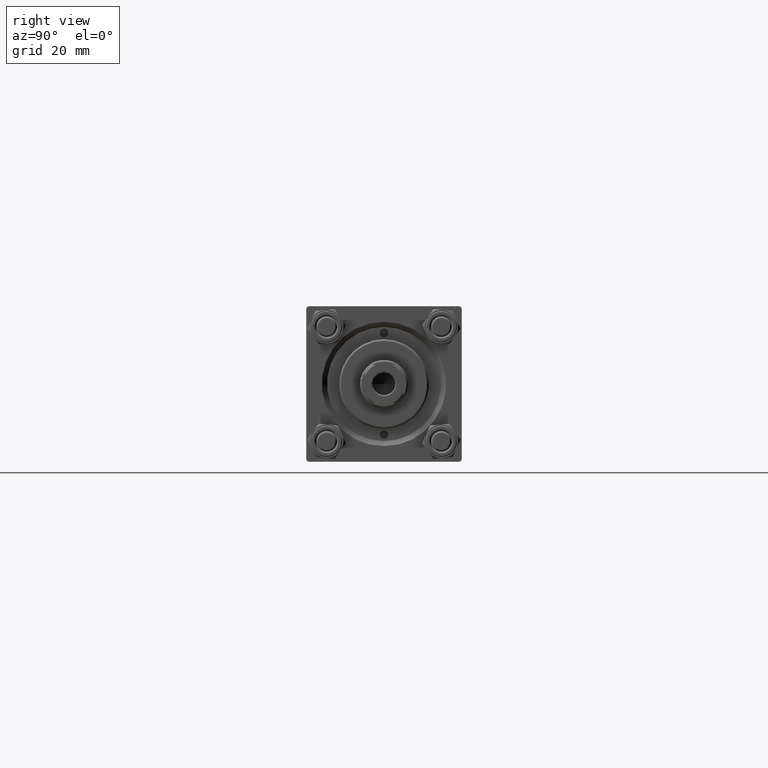
[diagram: clean part render]
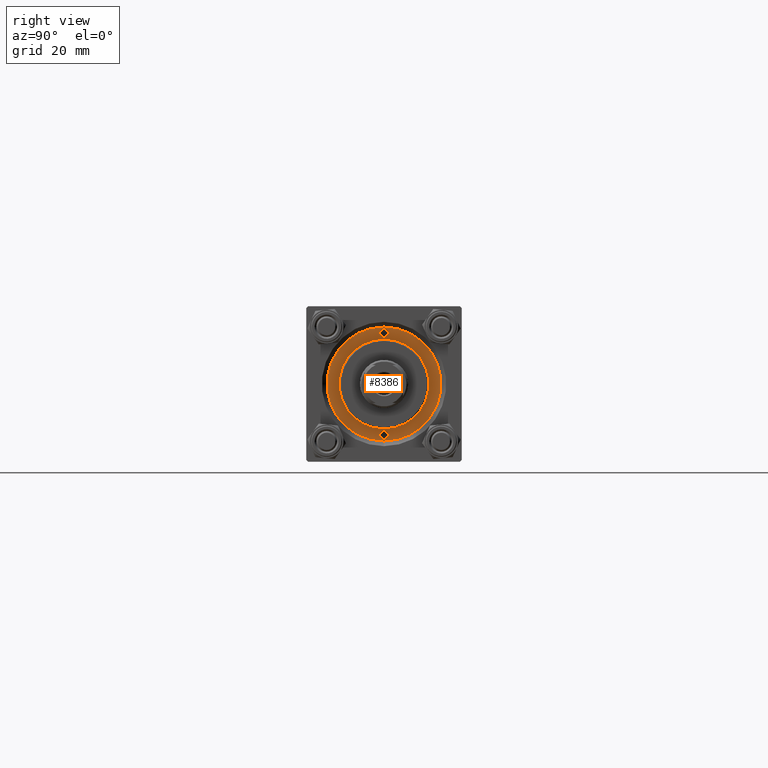
[diagram: same view with one face highlighted and labeled with its STEP entity id]
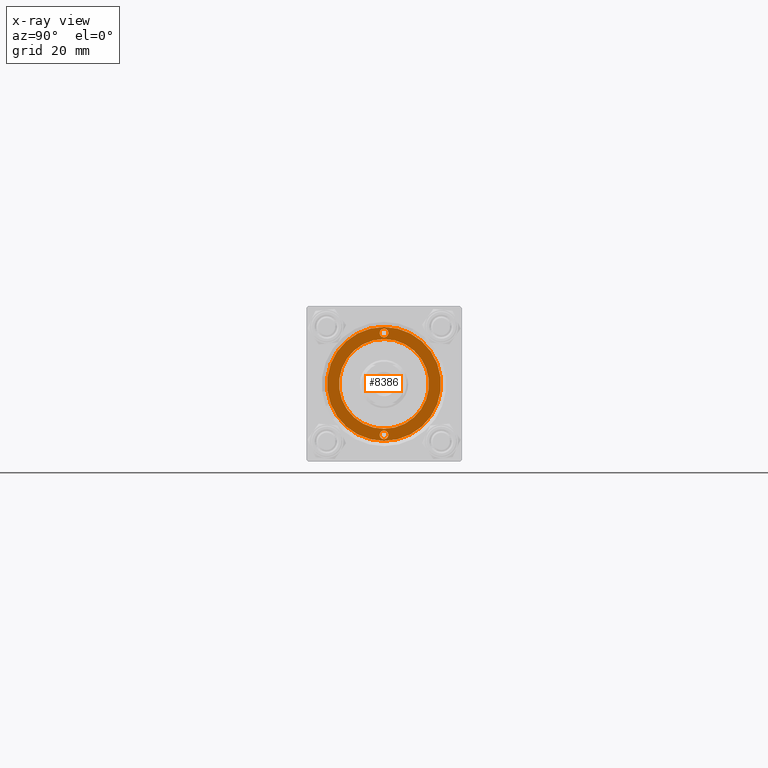
[diagram: x-ray of the same camera — body ghosted, the highlighted face saturated]
A machine part, right view. The second image highlights one B-rep face of the part: STEP entity #8386.
The next image is the same camera in x-ray: the body ghosted, the highlighted face saturated — about 0% of this face is hidden behind the body in this view.
In plain terms, the highlighted planar face has unit normal (1, 0, -0).
Its self-contained STEP definition (entity closure, byte-faithful):
#1057 = DIRECTION ( 'NONE',  ( 0.000000000000000000, 0.000000000000000000, 1.000000000000000000 ) ) ;
#2075 = CARTESIAN_POINT ( 'NONE',  ( 13.00000000000000178, 1.592040838891559293E-15, 28.69999999999999929 ) ) ;
#2120 = DIRECTION ( 'NONE',  ( 1.000000000000000000, 0.000000000000000000, 0.000000000000000000 ) ) ;
#4311 = CIRCLE ( 'NONE', #36620, 16.50000000000000000 ) ;
#5181 = EDGE_LOOP ( 'NONE', ( #26364, #8981 ) ) ;
#5557 = CARTESIAN_POINT ( 'NONE',  ( 13.50000000000000000, 1.530808498934190831E-16, 28.69999999999999929 ) ) ;
#7567 = CARTESIAN_POINT ( 'NONE',  ( 0.000000000000000000, 0.000000000000000000, 28.69999999999999929 ) ) ;
#8312 = ORIENTED_EDGE ( 'NONE', *, *, #32708, .F. ) ;
#8386 = ADVANCED_FACE ( 'NONE', ( #18919, #46996, #26767, #22955 ), #31312, .T. ) ;
#8844 = DIRECTION ( 'NONE',  ( 0.000000000000000000, 0.000000000000000000, 1.000000000000000000 ) ) ;
#8981 = ORIENTED_EDGE ( 'NONE', *, *, #36538, .T. ) ;
#11454 = EDGE_CURVE ( 'NONE', #35938, #32940, #26456, .T. ) ;
#12943 = EDGE_CURVE ( 'NONE', #13074, #34312, #36170, .T. ) ;
#13074 = VERTEX_POINT ( 'NONE', #41742 ) ;
#13963 = DIRECTION ( 'NONE',  ( 1.000000000000000000, 0.000000000000000000, 0.000000000000000000 ) ) ;
#14052 = CARTESIAN_POINT ( 'NONE',  ( 0.000000000000000000, 0.000000000000000000, 28.69999999999999929 ) ) ;
#14303 = DIRECTION ( 'NONE',  ( 1.000000000000000000, 0.000000000000000000, 0.000000000000000000 ) ) ;
#14975 = ORIENTED_EDGE ( 'NONE', *, *, #11454, .F. ) ;
#15090 = CARTESIAN_POINT ( 'NONE',  ( 16.50000000000000000, 2.020667218593133100E-15, 28.69999999999999929 ) ) ;
#16021 = VERTEX_POINT ( 'NONE', #40949 ) ;
#17612 = AXIS2_PLACEMENT_3D ( 'NONE', #21017, #1057, #28373 ) ;
#17760 = CARTESIAN_POINT ( 'NONE',  ( 14.75000000000000000, 0.000000000000000000, 28.69999999999999929 ) ) ;
#17945 = DIRECTION ( 'NONE',  ( 0.000000000000000000, 0.000000000000000000, 1.000000000000000000 ) ) ;
#18592 = DIRECTION ( 'NONE',  ( 0.000000000000000000, 0.000000000000000000, 1.000000000000000000 ) ) ;
#18919 = FACE_BOUND ( 'NONE', #29158, .T. ) ;
#20145 = CARTESIAN_POINT ( 'NONE',  ( -15.99999999999999645, 1.530808498934190585E-16, 28.69999999999999929 ) ) ;
#20781 = VERTEX_POINT ( 'NONE', #2075 ) ;
#21017 = CARTESIAN_POINT ( 'NONE',  ( 0.000000000000000000, 0.000000000000000000, 28.69999999999999929 ) ) ;
#21556 = EDGE_LOOP ( 'NONE', ( #14975, #21702 ) ) ;
#21702 = ORIENTED_EDGE ( 'NONE', *, *, #35552, .F. ) ;
#22024 = EDGE_LOOP ( 'NONE', ( #36046, #38009 ) ) ;
#22801 = CIRCLE ( 'NONE', #38195, 1.250000000000001110 ) ;
#22955 = FACE_OUTER_BOUND ( 'NONE', #5181, .T. ) ;
#23134 = CARTESIAN_POINT ( 'NONE',  ( -13.00000000000000178, 0.000000000000000000, 28.69999999999999929 ) ) ;
#23147 = EDGE_CURVE ( 'NONE', #45631, #20781, #30705, .T. ) ;
#23461 = DIRECTION ( 'NONE',  ( 1.000000000000000000, 0.000000000000000000, -0.000000000000000000 ) ) ;
#24505 = DIRECTION ( 'NONE',  ( 1.000000000000000000, 0.000000000000000000, 0.000000000000000000 ) ) ;
#24627 = CARTESIAN_POINT ( 'NONE',  ( -14.75000000000000000, 0.000000000000000000, 28.69999999999999929 ) ) ;
#25229 = CIRCLE ( 'NONE', #46236, 13.00000000000000178 ) ;
#25292 = DIRECTION ( 'NONE',  ( 1.000000000000000000, 0.000000000000000000, 0.000000000000000000 ) ) ;
#26364 = ORIENTED_EDGE ( 'NONE', *, *, #12943, .T. ) ;
#26456 = CIRCLE ( 'NONE', #35333, 1.250000000000001110 ) ;
#26767 = FACE_BOUND ( 'NONE', #22024, .T. ) ;
#27674 = CIRCLE ( 'NONE', #41400, 1.249999999999997558 ) ;
#28204 = EDGE_CURVE ( 'NONE', #20781, #45631, #25229, .T. ) ;
#28305 = CARTESIAN_POINT ( 'NONE',  ( -14.75000000000000000, 0.000000000000000000, 28.69999999999999929 ) ) ;
#28373 = DIRECTION ( 'NONE',  ( 1.000000000000000000, 0.000000000000000000, 0.000000000000000000 ) ) ;
#28665 = EDGE_CURVE ( 'NONE', #33274, #16021, #27674, .T. ) ;
#29158 = EDGE_LOOP ( 'NONE', ( #8312, #33294 ) ) ;
#30705 = CIRCLE ( 'NONE', #48530, 13.00000000000000178 ) ;
#30925 = CARTESIAN_POINT ( 'NONE',  ( 0.000000000000000000, 0.000000000000000000, 28.69999999999999929 ) ) ;
#31063 = DIRECTION ( 'NONE',  ( 0.000000000000000000, 0.000000000000000000, 1.000000000000000000 ) ) ;
#31312 = PLANE ( 'NONE',  #45707 ) ;
#32434 = AXIS2_PLACEMENT_3D ( 'NONE', #24627, #36500, #2120 ) ;
#32708 = EDGE_CURVE ( 'NONE', #16021, #33274, #40520, .T. ) ;
#32939 = DIRECTION ( 'NONE',  ( 0.000000000000000000, 0.000000000000000000, 1.000000000000000000 ) ) ;
#32940 = VERTEX_POINT ( 'NONE', #5557 ) ;
#33274 = VERTEX_POINT ( 'NONE', #20145 ) ;
#33294 = ORIENTED_EDGE ( 'NONE', *, *, #28665, .F. ) ;
#33468 = CARTESIAN_POINT ( 'NONE',  ( 16.00000000000000000, 0.000000000000000000, 28.69999999999999929 ) ) ;
#34312 = VERTEX_POINT ( 'NONE', #15090 ) ;
#35333 = AXIS2_PLACEMENT_3D ( 'NONE', #17760, #32939, #13963 ) ;
#35552 = EDGE_CURVE ( 'NONE', #32940, #35938, #22801, .T. ) ;
#35938 = VERTEX_POINT ( 'NONE', #33468 ) ;
#36046 = ORIENTED_EDGE ( 'NONE', *, *, #23147, .F. ) ;
#36170 = CIRCLE ( 'NONE', #17612, 16.50000000000000000 ) ;
#36500 = DIRECTION ( 'NONE',  ( 0.000000000000000000, 0.000000000000000000, 1.000000000000000000 ) ) ;
#36538 = EDGE_CURVE ( 'NONE', #34312, #13074, #4311, .T. ) ;
#36620 = AXIS2_PLACEMENT_3D ( 'NONE', #30925, #38766, #46108 ) ;
#37314 = DIRECTION ( 'NONE',  ( 1.000000000000000000, 0.000000000000000000, 0.000000000000000000 ) ) ;
#37816 = CARTESIAN_POINT ( 'NONE',  ( 14.75000000000000000, 0.000000000000000000, 28.69999999999999929 ) ) ;
#38009 = ORIENTED_EDGE ( 'NONE', *, *, #28204, .F. ) ;
#38195 = AXIS2_PLACEMENT_3D ( 'NONE', #37816, #18592, #14303 ) ;
#38766 = DIRECTION ( 'NONE',  ( 0.000000000000000000, 0.000000000000000000, 1.000000000000000000 ) ) ;
#40520 = CIRCLE ( 'NONE', #32434, 1.249999999999997558 ) ;
#40949 = CARTESIAN_POINT ( 'NONE',  ( -13.50000000000000178, 0.000000000000000000, 28.69999999999999929 ) ) ;
#41400 = AXIS2_PLACEMENT_3D ( 'NONE', #28305, #8844, #24505 ) ;
#41742 = CARTESIAN_POINT ( 'NONE',  ( -16.50000000000000000, 0.000000000000000000, 28.69999999999999929 ) ) ;
#44917 = DIRECTION ( 'NONE',  ( 0.000000000000000000, 0.000000000000000000, 1.000000000000000000 ) ) ;
#45631 = VERTEX_POINT ( 'NONE', #23134 ) ;
#45707 = AXIS2_PLACEMENT_3D ( 'NONE', #7567, #31063, #23461 ) ;
#46108 = DIRECTION ( 'NONE',  ( 1.000000000000000000, 0.000000000000000000, 0.000000000000000000 ) ) ;
#46236 = AXIS2_PLACEMENT_3D ( 'NONE', #14052, #44917, #37314 ) ;
#46996 = FACE_BOUND ( 'NONE', #21556, .T. ) ;
#48530 = AXIS2_PLACEMENT_3D ( 'NONE', #48566, #17945, #25292 ) ;
#48566 = CARTESIAN_POINT ( 'NONE',  ( 0.000000000000000000, 0.000000000000000000, 28.69999999999999929 ) ) ;